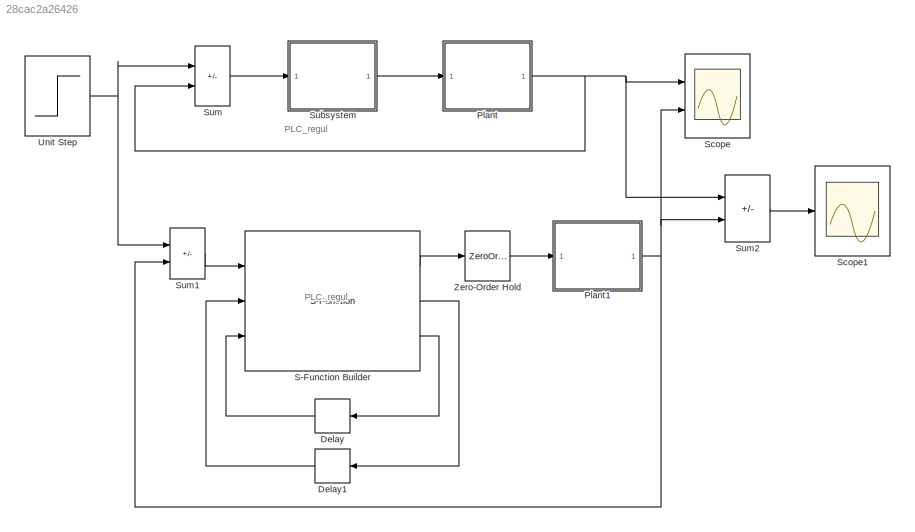
MODEL slx_28cac2a26426
KIND model
CONFIG AbsTol = auto
CONFIG EnableMultiTasking = off
CONFIG FixedStep = 0.2
CONFIG MaxStep = auto
CONFIG MinStep = auto
CONFIG RelTol = 1e-3
CONFIG SampleTimeConstraint = Unconstrained
CONFIG SolverName = ode14x
CONFIG StartTime = 0.0
CONFIG StopTime = 10.0
BLOCK [Delay] Delay
  DelayLength = 1
  InputPortMap = u0
  Ports = [1, 1]
BLOCK [Delay] Delay1
  DelayLength = 1
  InputPortMap = u0
  Ports = [1, 1]
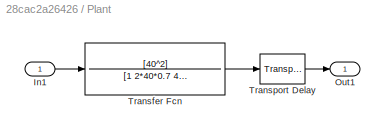
BLOCK [SubSystem] Plant
  Ports = [1, 1]
  RequestExecContextInheritance = off
BLOCK [Inport] Plant/In1
BLOCK [Outport] Plant/Out1
  VectorParamsAs1DForOutWhenUnconnected = off
BLOCK [TransferFcn] Plant/Transfer Fcn
  Denominator = [1 2*40*0.7 40^2]
  Numerator = [40^2]
BLOCK [TransportDelay] Plant/Transport Delay
  Ports = [1, 1]
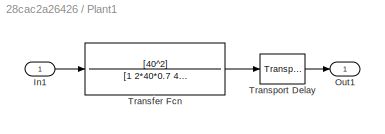
BLOCK [SubSystem] Plant1
  Ports = [1, 1]
  RequestExecContextInheritance = off
BLOCK [Inport] Plant1/In1
BLOCK [Outport] Plant1/Out1
  VectorParamsAs1DForOutWhenUnconnected = off
BLOCK [TransferFcn] Plant1/Transfer Fcn
  Denominator = [1 2*40*0.7 40^2]
  Numerator = [40^2]
BLOCK [TransportDelay] Plant1/Transport Delay
  Ports = [1, 1]
BLOCK [S-Function] S-Function Builder
  CopyFcn = set_param(gcbh,'LinkStatus','none')
  EnableBusSupport = off
  FunctionName = pid_regul_c
  InitFcn = try, set_param(gcb,'FunctionName','pid_regul_c'), end
  OpenFcn = sfunctionwizard(gcbh)
  Ports = [3, 3]
  PreSaveFcn = try, set_param(gcb,'FunctionName','pid_regul_c'), end
  SFcnIsStateOwnerBlock = off
  SFunctionDeploymentMode = off
  SFunctionModules = pid_regul_c_wrapper
BLOCK [Scope] Scope
  Floating = off
  NumInputPorts = 2
  Ports = [2]
  ScopeSpecificationString = Simulink.scopes.TimeScopeBlockCfg('CurrentConfiguration', extmgr.ConfigurationSet(extmgr.Configuration('Core','General UI',true,'FigureColor',[1 1 1]),extmgr.Configuration('Core','Source UI',true),extmgr.Configuration('Sources','WiredSimulink',true,'DataLoggingSaveFormat','StructureWithTime','DataLoggingLimitDataPoints',true,'DataLoggingDecimation','1','DataLoggingDecimateData',true),extmgr.Config...<+1829ch>
BLOCK [Scope] Scope1
  Floating = off
  NumInputPorts = 1
  Ports = [1]
  ScopeSpecificationString = Simulink.scopes.TimeScopeBlockCfg('CurrentConfiguration', extmgr.ConfigurationSet(extmgr.Configuration('Core','General UI',true,'FigureColor',[1 1 1]),extmgr.Configuration('Core','Source UI',true),extmgr.Configuration('Sources','WiredSimulink',true,'DataLoggingVariableName','ScopeData1'),extmgr.Configuration('Visuals','Time Domain',true,'SerializedDisplays',{struct('MinYLimReal','-0.00000024','Max...<+1564ch>
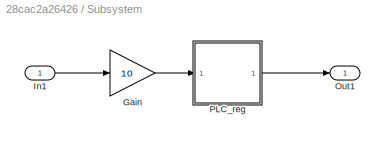
BLOCK [SubSystem] Subsystem
  Ports = [1, 1]
  RequestExecContextInheritance = off
BLOCK [Gain] Subsystem/Gain
  Gain = 10
BLOCK [Inport] Subsystem/In1
BLOCK [Outport] Subsystem/Out1
  VectorParamsAs1DForOutWhenUnconnected = off
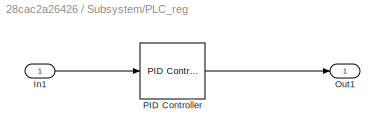
BLOCK [SubSystem] Subsystem/PLC_reg
  Ports = [1, 1]
  RequestExecContextInheritance = off
BLOCK [Inport] Subsystem/PLC_reg/In1
BLOCK [Outport] Subsystem/PLC_reg/Out1
  VectorParamsAs1DForOutWhenUnconnected = off
BLOCK [Reference] Subsystem/PLC_reg/PID Controller  REF=slpidlib/PID Controller
  Ports = [1, 1]
  SourceBlock = slpidlib/PID Controller
  SourceProductBaseCode = SL
  SourceType = PID 1dof
BLOCK [Sum] Sum
  IconShape = rectangular
  InputSameDT = on
  Inputs = +-
  OutDataTypeStr = Inherit: Same as first input
  Ports = [2, 1]
  SaturateOnIntegerOverflow = on
BLOCK [Sum] Sum1
  IconShape = rectangular
  InputSameDT = on
  Inputs = +-
  OutDataTypeStr = Inherit: Same as first input
  Ports = [2, 1]
  SaturateOnIntegerOverflow = on
BLOCK [Sum] Sum2
  IconShape = rectangular
  InputSameDT = on
  Inputs = +-
  OutDataTypeStr = Inherit: Same as first input
  Ports = [2, 1]
  SaturateOnIntegerOverflow = on
BLOCK [Step] Unit Step
  SampleTime = 0
  Time = 0
BLOCK [ZeroOrderHold] Zero-Order Hold
  SampleTime = 0.2
ANNOTATION (root): PLC_regul
LINE Delay1:1 -> S-Function Builder:2
LINE Delay:1 -> S-Function Builder:3
LINE Plant/In1:1 -> Plant/Transfer Fcn:1
LINE Plant/Transfer Fcn:1 -> Plant/Transport Delay:1
LINE Plant/Transport Delay:1 -> Plant/Out1:1
LINE Plant1/In1:1 -> Plant1/Transfer Fcn:1
LINE Plant1/Transfer Fcn:1 -> Plant1/Transport Delay:1
LINE Plant1/Transport Delay:1 -> Plant1/Out1:1
NET Plant1:1 -> Scope:2, Sum1:2, Sum2:2
NET Plant:1 -> Scope:1, Sum2:1, Sum:2
LINE S-Function Builder:1 -> Zero-Order Hold:1
LINE S-Function Builder:2 -> Delay1:1
LINE S-Function Builder:3 -> Delay:1
LINE Subsystem/Gain:1 -> Subsystem/PLC_reg:1
LINE Subsystem/In1:1 -> Subsystem/Gain:1
LINE Subsystem/PLC_reg/In1:1 -> Subsystem/PLC_reg/PID Controller:1
LINE Subsystem/PLC_reg/PID Controller:1 -> Subsystem/PLC_reg/Out1:1
LINE Subsystem/PLC_reg:1 -> Subsystem/Out1:1
LINE Subsystem:1 -> Plant:1
LINE Sum1:1 -> S-Function Builder:1
LINE Sum2:1 -> Scope1:1
LINE Sum:1 -> Subsystem:1
NET Unit Step:1 -> Sum1:1, Sum:1
LINE Zero-Order Hold:1 -> Plant1:1
note: NET lines group one-source signal fan-out (src -> all destinations, sorted); 1:1 wires keep LINE
